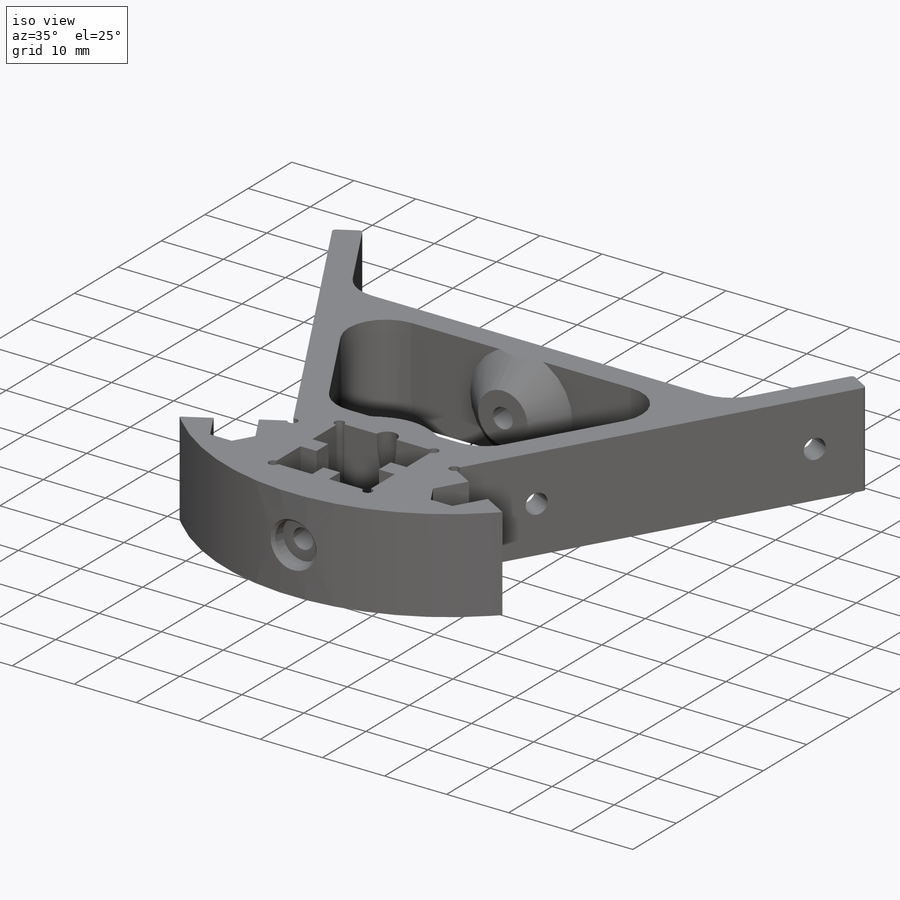
[diagram: iso view]
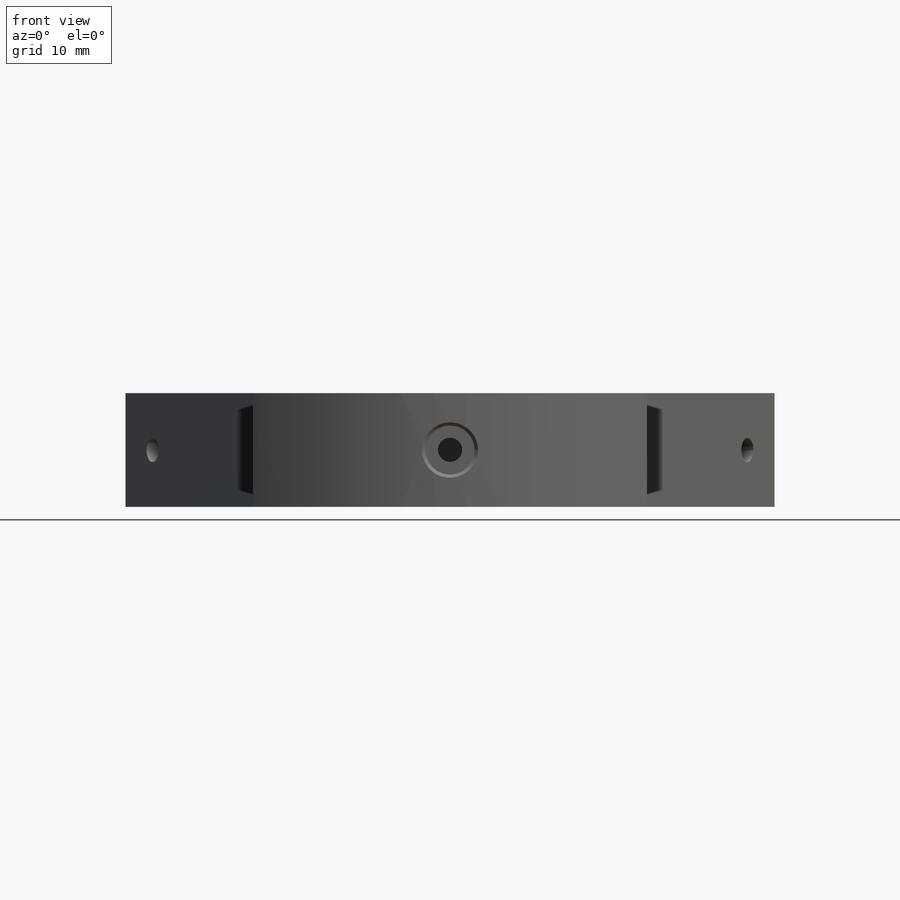
[diagram: front view]
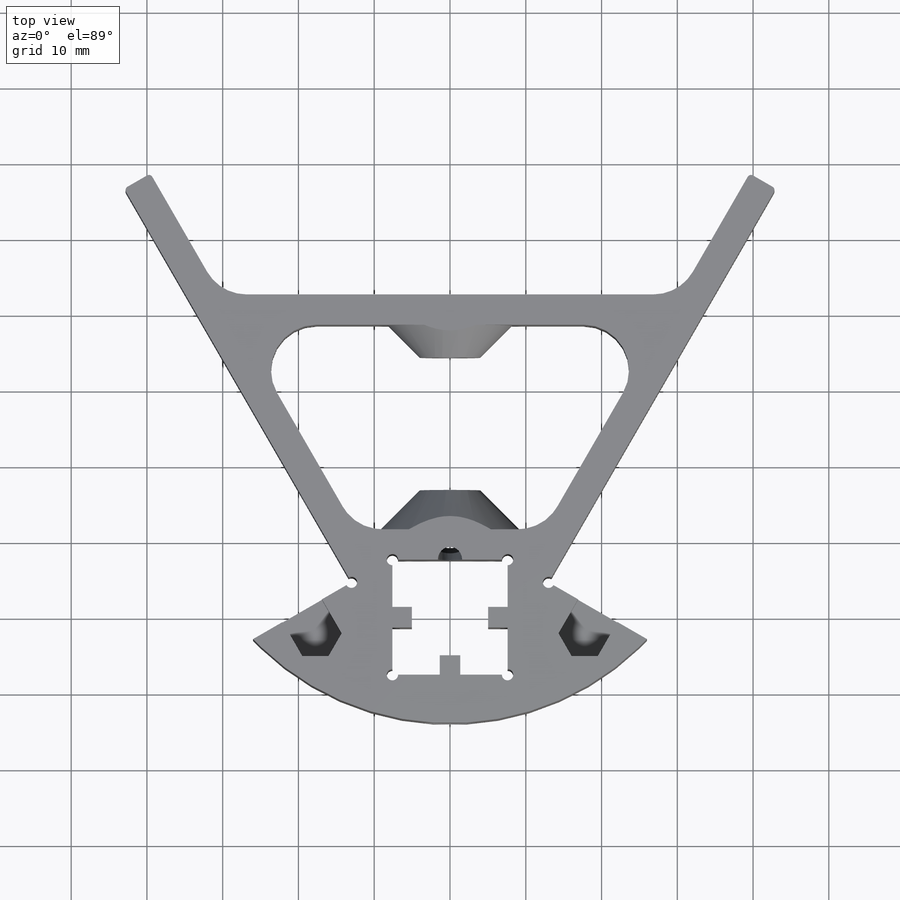
[diagram: top view]
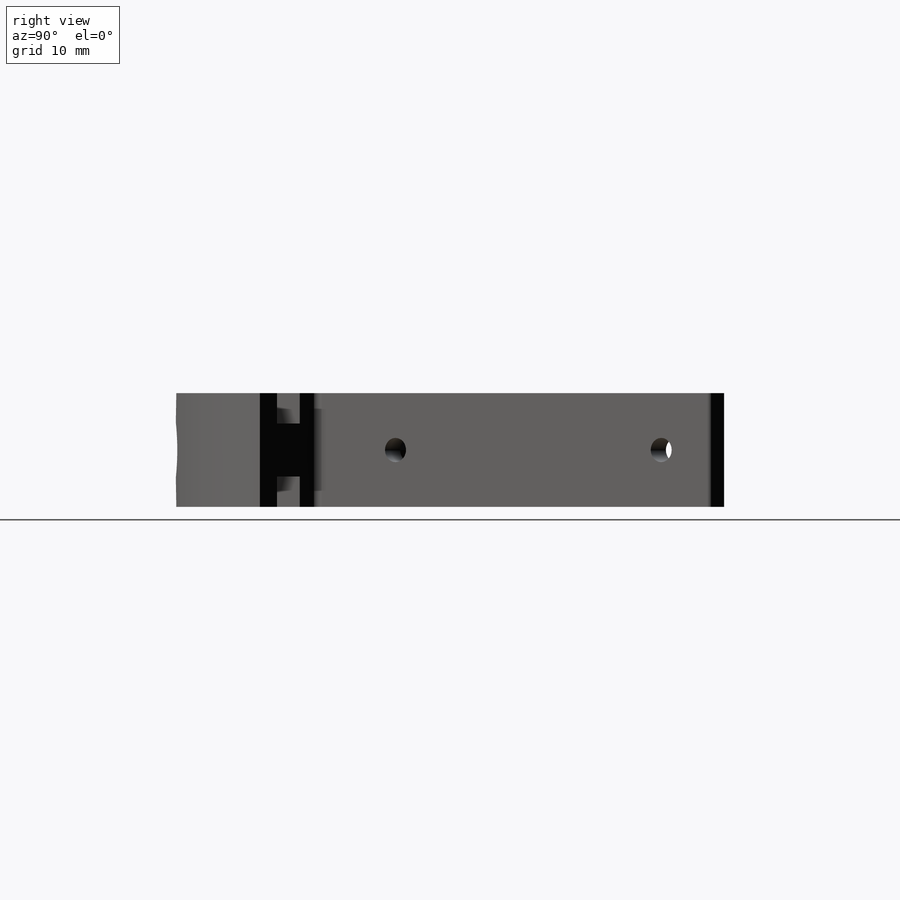
[diagram: right view]
SOLIDWORKS PART (.sldprt)
format: sldprt  version: not decoded by parser v0  size: 719,872 bytes
history: native  units: mm
features: sketch x23, cut_extrude x14, extrude x4, cut_revolve x2, chamfer x2, material x1, plane x1, revolve x1, fillet x1 (+12 scaffold rows collapsed)
feature tree (61):
  scaffold x12  (default folders/planes/origin — collapsed)
  material  "Material <not specified>"
  sketch  "Sketch1"  dims[c1.D1=16.0mm c1.D2=37.5mm c1.D3=~45.107307mm c2.D2=75.0mm c2.D3=52.5mm c3.D3=~146.237758deg]
  sketch  "Sketch4"  dims[c1.D2=72.0mm c1.D6=72.0mm c1.D13=6.0mm c1.D14=6.0mm c1.D1=22.0mm c1.D3=~47.163799mm c2.D3=30.0deg c2.D4=15.0mm c2.D5=16.0mm c2.D6=111.0mm c3.D5=26.0mm c3.D6=15.0mm c4.D6=120.0deg c4.D7=4.0mm c4.D8=56.6mm c4.D9=60.0mm c4.D10=15.2mm c4.D11=6.4mm c4.D12=4.0mm c4.D15=~36.295841mm c5.D11=4.0mm]
  extrude  "Boss-Extrude3"  Depth=15mm
  plane  "Plane1"  Offset=10mm
  sketch  "Sketch5"  dims[D1=3.2mm]
  cut_extrude  "Cut-Extrude1"  [1 undecoded]
  sketch  "Sketch6"  dims[c1.D1=3.2mm c1.D2=7.4mm c1.D3=3.4mm c1.D4=~11.534187mm c2.D4=45.0deg c2.D5=~10.46518mm c3.D5=45.0deg c4.D5=8.0mm c4.D2=17.5mm c4.D3=4.25mm]
  revolve  "Revolve1"  Angle=360deg
  sketch  "Sketch8"
  cut_extrude  "Cut-Extrude2"  [1 undecoded]
  sketch  "Sketch9"
  cut_extrude  "Cut-Extrude3"  [1 undecoded]
  sketch  "Sketch10"  dims[D1=5.8mm]
  cut_extrude  "Cut-Extrude4"  Depth=4mm
  sketch  "Sketch11"  dims[D1=~7.544447mm]
  sketch  "Sketch12"  dims[c1.D1=0.0mm c1.D2=~51.716954mm c2.D2=15.0deg c2.D3=1.6mm c2.D4=3.0mm]
  cut_revolve  "Cut-Revolve1"  Angle=360deg
  sketch  "Sketch13"  dims[D1=5.7mm]
  cut_extrude  "Cut-Extrude5"  [1 undecoded]
  sketch  "Sketch14"
  cut_extrude  "Cut-Extrude6"  [1 undecoded]
  sketch  "Sketch15"  dims[D1=6.5mm]
  cut_extrude  "Cut-Extrude7"  Depth=10mm
  sketch  "Sketch16"  dims[D1=3.2mm D2=7.5mm D3=40.5mm D4=12.0mm]
  cut_extrude  "Cut-Extrude8"  [1 undecoded]
  sketch  "Sketch17"  dims[D1=3.2mm D2=7.5mm D3=40.5mm]
  cut_extrude  "Cut-Extrude9"  [1 undecoded]
  sketch  "Sketch18"  dims[D1=12.0mm D2=7.0mm]
  extrude  "Boss-Extrude5"  Depth=0.5mm
  chamfer  "Chamfer1"  Distance=0.5mm Angle=45deg
  sketch  "Sketch20"  dims[D1=2.7mm D2=~2.566879mm]
  extrude  "Boss-Extrude6"  [1 undecoded]
  sketch  "Sketch21"  dims[D1=0.0mm]
  cut_extrude  "Cut-Extrude12"  [1 undecoded]
  chamfer  "Chamfer2"  Distance=2.5mm Angle=45deg
  sketch  "Sketch22"  dims[c1.D1=~3.080751mm c2.D1=45.0deg]
  cut_extrude  "Cut-Extrude13"  [1 undecoded]
  cut_revolve  "Draft2"  Angle=5deg
  sketch  "Sketch23"  dims[D1=1.5mm]
  cut_extrude  "Cut-Extrude14"  [1 undecoded]
  sketch  "Sketch24"  dims[D3=6.0mm D4=6.0mm D1=7.5mm D2=7.5mm]
  cut_extrude  "Cut-Extrude15"  Depth=4mm
  sketch  "Sketch25"  dims[D1=0.0mm D2=0.0mm]
  cut_extrude  "Cut-Extrude16"  Depth=4mm
  fillet  "Fillet1"  Radius=0.5mm
  sketch  "Sketch27"  dims[D1=6.5mm]
  sketch  "Sketch26"  dims[D1=20.0mm]
  extrude  "Stabilizing_Feet"  Depth=0.4mm
decode coverage: 33 of 47 modeling features carry decoded parameters
note: ~ marks probable driven/reference dimensions
note: 11 parameter values undecoded
summary: no parameter record found for 11 features
note: suppression state not decoded; provenance and decode notes live in map.json
